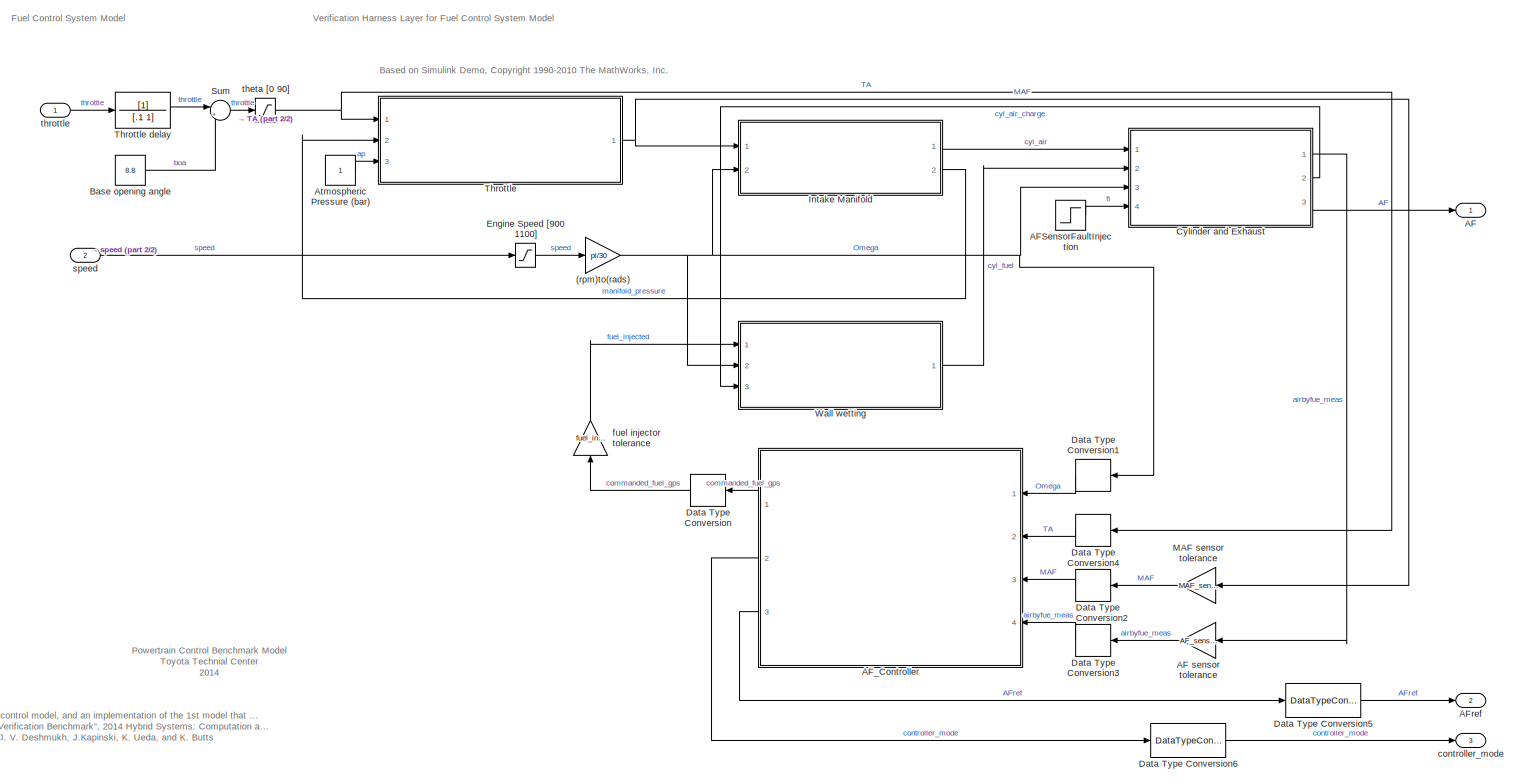
[diagram: root canvas - part 1/2, most of the canvas]
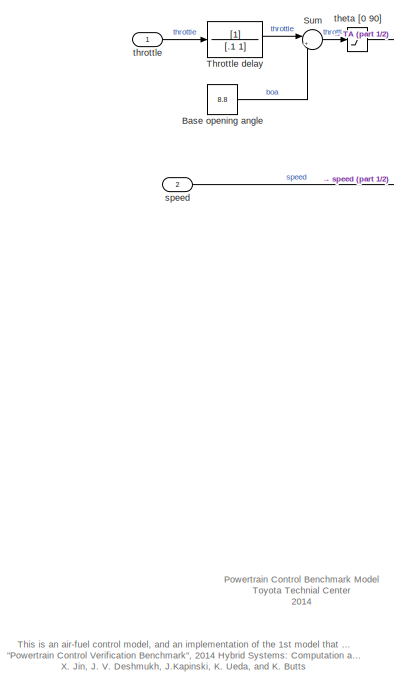
[diagram: root canvas - part 2/2, left side, full height]
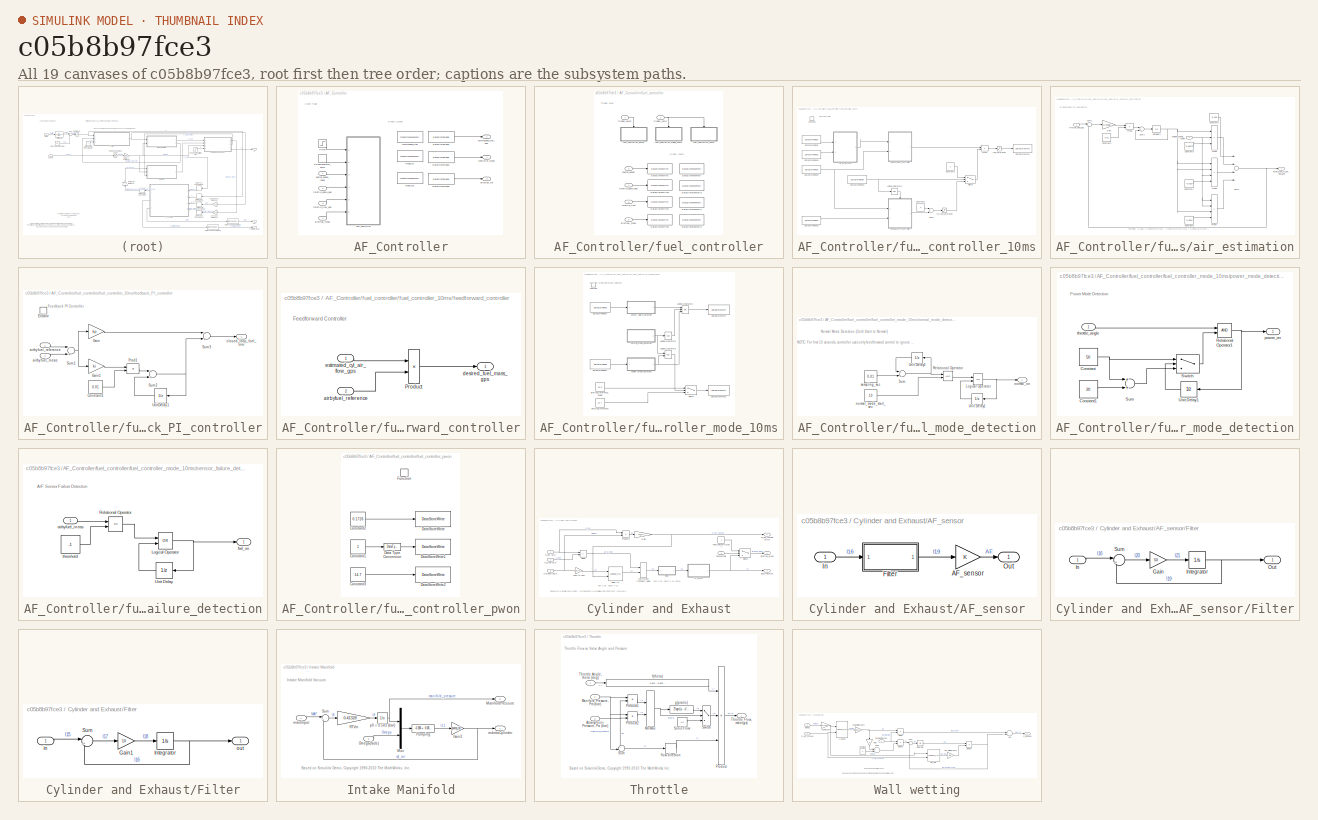
[diagram: thumbnail index - all 19 canvases of the model, root first then tree order]
MODEL slx_c05b8b97fce3
KIND model
CONFIG AbsTol = auto
CONFIG EnableMultiTasking = off
CONFIG FixedStep = auto
CONFIG MaxStep = .01
CONFIG MinStep = auto
CONFIG RelTol = 1e-3
CONFIG SampleTimeConstraint = Unconstrained
CONFIG Solver = ode15s
CONFIG SolverName = ode15s
CONFIG StartTime = 0.0
CONFIG StopTime = 40.0
BLOCK [Gain] (rpm)to(rads)
  Gain = pi/30
  OutDataTypeStr = Inherit: Inherit via internal rule
  ParamDataTypeStr = Inherit: Inherit via internal rule
  SaturateOnIntegerOverflow = off
BLOCK [Outport] AF
  IconDisplay = Port number
BLOCK [Gain] AF sensor tolerance
  Gain = AF_sensor_tol
  OutDataTypeStr = Inherit: Inherit via internal rule
  ParamDataTypeStr = Inherit: Inherit via internal rule
  SaturateOnIntegerOverflow = off
BLOCK [Step] AFSensorFaultInjection
  AttributesFormatString = 1: Failure\n0: Normal
  SampleTime = 0
  Time = fault_time
BLOCK [SubSystem] AF_Controller
  Ports = [4, 3]
  RequestExecContextInheritance = off
  TreatAsAtomicUnit = on
  Variant = off
BLOCK [DataStoreRead] AF_Controller/DataStoreRead
  AttributesFormatString = Priority = %<Priority>
  DataStoreName = commanded_fuel
  Ports = [0, 1]
  Priority = 2
  SampleTime = 0.01
BLOCK [DataStoreRead] AF_Controller/DataStoreRead1
  AttributesFormatString = Priority = %<Priority>
  DataStoreName = controller_mode
  Ports = [0, 1]
  Priority = 2
  SampleTime = 0.01
BLOCK [DataStoreRead] AF_Controller/DataStoreRead2
  AttributesFormatString = Priority = %<Priority>
  DataStoreName = airbyfuel_ref
  Ports = [0, 1]
  Priority = 2
  SampleTime = 0.01
BLOCK [DiscretePulseGenerator] AF_Controller/PulseGenerator_10ms
  Period = 0.01
  PhaseDelay = 0.01
  Ports = [0, 1]
  PulseType = Time based
  PulseWidth = 50
BLOCK [Step] AF_Controller/Pwon
  SampleTime = 0
  Time = 0.001
BLOCK [Inport] AF_Controller/airbyfuel_meas
  IconDisplay = Port number
  Port = 4
  SamplingMode = Sample based
  SignalType = real
BLOCK [Outport] AF_Controller/airbyfuel_ref
  IconDisplay = Port number
  Port = 3
  SamplingMode = Sample based
  SignalType = real
BLOCK [DataStoreMemory] AF_Controller/commanded_fuel
  AttributesFormatString = commanded_fuel
  DataStoreName = commanded_fuel
  InitialValue = 0.1726
  OutDataTypeStr = single
  ShowAdditionalParam = off
  SignalType = real
BLOCK [Outport] AF_Controller/commanded_fuel_gps
  IconDisplay = Port number
  SamplingMode = Sample based
  SignalType = real
BLOCK [Outport] AF_Controller/controller_mode
  IconDisplay = Port number
  Port = 2
  SamplingMode = Sample based
  SignalType = real
BLOCK [Inport] AF_Controller/engine_speed_radps
  IconDisplay = Port number
  SamplingMode = Sample based
  SignalType = real
BLOCK [SubSystem] AF_Controller/fuel_controller
  AttributesFormatString = Priority = %<Priority>
  Ports = [6]
  Priority = 1
  RequestExecContextInheritance = off
  TreatAsAtomicUnit = on
  Variant = off
BLOCK [DataStoreMemory] AF_Controller/fuel_controller/DataStoreMemory
  AttributesFormatString = engine speed
  DataStoreName = engine_speed
  OutDataTypeStr = single
  ShowAdditionalParam = off
  SignalType = real
BLOCK [DataStoreMemory] AF_Controller/fuel_controller/DataStoreMemory1
  AttributesFormatString = throttle flow
  DataStoreName = throttle_flow
  OutDataTypeStr = single
  ShowAdditionalParam = off
  SignalType = real
BLOCK [DataStoreMemory] AF_Controller/fuel_controller/DataStoreMemory2
  AttributesFormatString = lambda_meas
  DataStoreName = airbyfuel_meas
  OutDataTypeStr = single
  ShowAdditionalParam = off
  SignalType = real
BLOCK [DataStoreMemory] AF_Controller/fuel_controller/DataStoreMemory3
  AttributesFormatString = throttle flow
  DataStoreName = throttle_angle
  OutDataTypeStr = single
  ShowAdditionalParam = off
  SignalType = real
BLOCK [DataStoreWrite] AF_Controller/fuel_controller/DataStoreWrite
  AttributesFormatString = Priority = %<Priority>
  DataStoreName = engine_speed
  Ports = [1]
  Priority = 1
BLOCK [DataStoreWrite] AF_Controller/fuel_controller/DataStoreWrite1
  AttributesFormatString = Priority = %<Priority>
  DataStoreName = throttle_flow
  Ports = [1]
  Priority = 1
BLOCK [DataStoreWrite] AF_Controller/fuel_controller/DataStoreWrite2
  AttributesFormatString = Priority = %<Priority>
  DataStoreName = airbyfuel_meas
  Ports = [1]
  Priority = 1
BLOCK [DataStoreWrite] AF_Controller/fuel_controller/DataStoreWrite3
  AttributesFormatString = Priority = %<Priority>
  DataStoreName = throttle_angle
  Ports = [1]
  Priority = 1
BLOCK [Inport] AF_Controller/fuel_controller/airbyfuel_meas
  IconDisplay = Port number
  Port = 6
  SamplingMode = Sample based
  SignalType = real
BLOCK [Inport] AF_Controller/fuel_controller/engine_speed
  IconDisplay = Port number
  Port = 3
  SamplingMode = Sample based
  SignalType = real
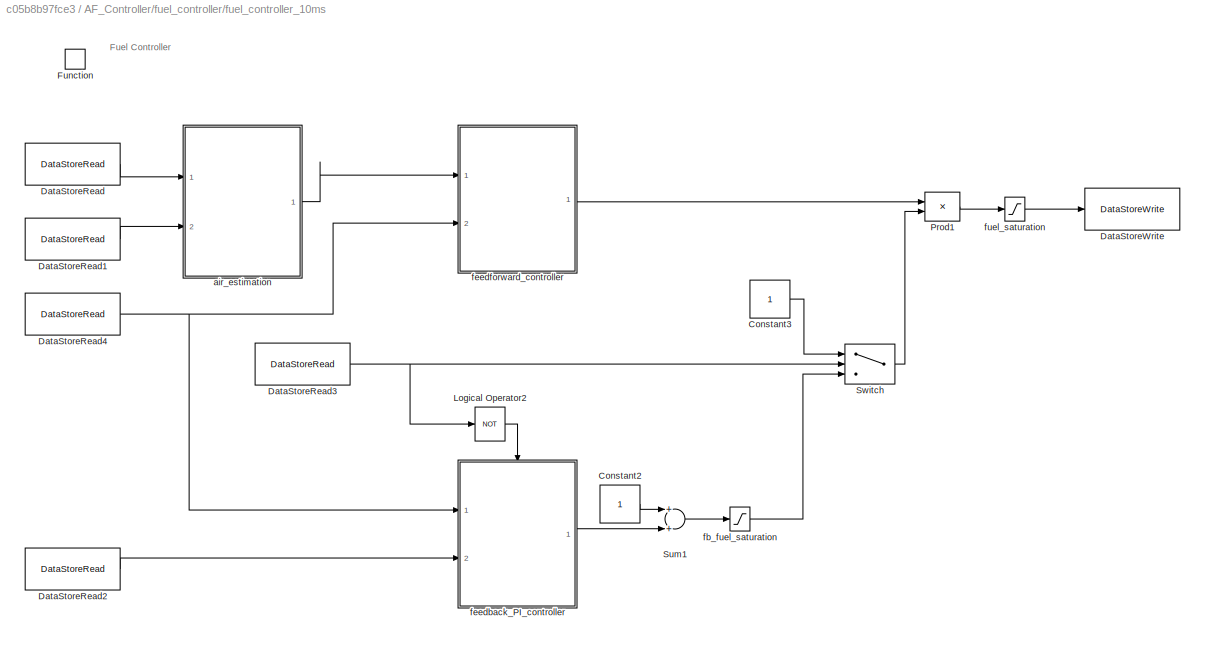
BLOCK [SubSystem] AF_Controller/fuel_controller/fuel_controller_10ms
  AttributesFormatString = Priority = %<Priority>
  Ports = [0, 0, 0, 1]
  Priority = 30
  RequestExecContextInheritance = off
  TreatAsAtomicUnit = on
  Variant = off
BLOCK [Constant] AF_Controller/fuel_controller/fuel_controller_10ms/Constant2
  OutDataTypeStr = single
BLOCK [Constant] AF_Controller/fuel_controller/fuel_controller_10ms/Constant3
  OutDataTypeStr = single
BLOCK [DataStoreRead] AF_Controller/fuel_controller/fuel_controller_10ms/DataStoreRead
  DataStoreName = throttle_flow
  Ports = [0, 1]
BLOCK [DataStoreRead] AF_Controller/fuel_controller/fuel_controller_10ms/DataStoreRead1
  DataStoreName = engine_speed
  Ports = [0, 1]
BLOCK [DataStoreRead] AF_Controller/fuel_controller/fuel_controller_10ms/DataStoreRead2
  DataStoreName = airbyfuel_meas
  Ports = [0, 1]
BLOCK [DataStoreRead] AF_Controller/fuel_controller/fuel_controller_10ms/DataStoreRead3
  AttributesFormatString = 1: Feedforward\n0: Feedforward + Feedback
  DataStoreName = controller_mode
  Ports = [0, 1]
BLOCK [DataStoreRead] AF_Controller/fuel_controller/fuel_controller_10ms/DataStoreRead4
  DataStoreName = airbyfuel_ref
  Ports = [0, 1]
BLOCK [DataStoreWrite] AF_Controller/fuel_controller/fuel_controller_10ms/DataStoreWrite
  DataStoreName = commanded_fuel
  Ports = [1]
BLOCK [TriggerPort] AF_Controller/fuel_controller/fuel_controller_10ms/Function
  Ports = []
  StatesWhenEnabling = held
  VariantControl = Variant
BLOCK [Logic] AF_Controller/fuel_controller/fuel_controller_10ms/Logical Operator2
  AllPortsSameDT = off
  Operator = NOT
  OutDataTypeStr = boolean
  Ports = [1, 1]
BLOCK [Product] AF_Controller/fuel_controller/fuel_controller_10ms/Prod1
  InputSameDT = off
  OutDataTypeStr = Inherit: Inherit via back propagation
  Ports = [2, 1]
  RndMeth = Simplest
  SaturateOnIntegerOverflow = off
BLOCK [Sum] AF_Controller/fuel_controller/fuel_controller_10ms/Sum1
  OutDataTypeStr = Inherit: Inherit via back propagation
  Ports = [2, 1]
  RndMeth = Simplest
  SaturateOnIntegerOverflow = off
BLOCK [Switch] AF_Controller/fuel_controller/fuel_controller_10ms/Switch
  Criteria = u2 ~= 0
  InputSameDT = off
  SaturateOnIntegerOverflow = off
  Threshold = 0.5
BLOCK [SubSystem] AF_Controller/fuel_controller/fuel_controller_10ms/air_estimation
  Ports = [2, 1]
  RequestExecContextInheritance = off
  TreatAsAtomicUnit = on
  Variant = off
BLOCK [Constant] AF_Controller/fuel_controller/fuel_controller_10ms/air_estimation/Constant1
  AttributesFormatString = Sample Time (s)
  OutDataTypeStr = single
  SampleTime = -1
  UserDataPersistent = on
  Value = 0.01
BLOCK [Constant] AF_Controller/fuel_controller/fuel_controller_10ms/air_estimation/Constant2
  OutDataTypeStr = single
  SampleTime = -1
  UserDataPersistent = on
  Value = -0.366
BLOCK [Constant] AF_Controller/fuel_controller/fuel_controller_10ms/air_estimation/Constant3
  OutDataTypeStr = single
  SampleTime = -1
  UserDataPersistent = on
  Value = 0.08979
BLOCK [Constant] AF_Controller/fuel_controller/fuel_controller_10ms/air_estimation/Constant4
  OutDataTypeStr = single
  SampleTime = -1
  UserDataPersistent = on
  Value = -0.0337
BLOCK [Constant] AF_Controller/fuel_controller/fuel_controller_10ms/air_estimation/Constant5
  OutDataTypeStr = single
  SampleTime = -1
  UserDataPersistent = on
  Value = 0.0001
BLOCK [Gain] AF_Controller/fuel_controller/fuel_controller_10ms/air_estimation/Gain
  AttributesFormatString = RT/Vm
  Gain = 0.41328
  OutDataTypeStr = Inherit: Inherit via back propagation
  ParamDataTypeStr = single
  RndMeth = Simplest
  UserDataPersistent = on
BLOCK [Product] AF_Controller/fuel_controller/fuel_controller_10ms/air_estimation/Prod1
  InputSameDT = off
  OutDataTypeStr = Inherit: Inherit via back propagation
  Ports = [2, 1]
  RndMeth = Simplest
  SaturateOnIntegerOverflow = off
BLOCK [Product] AF_Controller/fuel_controller/fuel_controller_10ms/air_estimation/Prod2
  InputSameDT = off
  Inputs = 3
  OutDataTypeStr = Inherit: Inherit via back propagation
  Ports = [3, 1]
  RndMeth = Simplest
  SaturateOnIntegerOverflow = off
BLOCK [Product] AF_Controller/fuel_controller/fuel_controller_10ms/air_estimation/Prod3
  InputSameDT = off
  Inputs = 4
  OutDataTypeStr = Inherit: Inherit via back propagation
  Ports = [4, 1]
  RndMeth = Simplest
  SaturateOnIntegerOverflow = off
BLOCK [Product] AF_Controller/fuel_controller/fuel_controller_10ms/air_estimation/Prod4
  InputSameDT = off
  Inputs = 4
  OutDataTypeStr = Inherit: Inherit via back propagation
  Ports = [4, 1]
  RndMeth = Simplest
  SaturateOnIntegerOverflow = off
BLOCK [Sum] AF_Controller/fuel_controller/fuel_controller_10ms/air_estimation/Sum1
  IconShape = round
  Inputs = |+-
  OutDataTypeStr = Inherit: Inherit via back propagation
  Ports = [2, 1]
  RndMeth = Simplest
  SaturateOnIntegerOverflow = off
BLOCK [Sum] AF_Controller/fuel_controller/fuel_controller_10ms/air_estimation/Sum2
  OutDataTypeStr = Inherit: Inherit via back propagation
  Ports = [2, 1]
  RndMeth = Simplest
  SaturateOnIntegerOverflow = off
BLOCK [Sum] AF_Controller/fuel_controller/fuel_controller_10ms/air_estimation/Sum3
  Inputs = ++++
  OutDataTypeStr = Inherit: Inherit via back propagation
  Ports = [4, 1]
  RndMeth = Simplest
  SaturateOnIntegerOverflow = off
BLOCK [UnitDelay] AF_Controller/fuel_controller/fuel_controller_10ms/air_estimation/UnitDelay1
  AttributesFormatString = p0 = %<InitialCondition> (bar)
  InitialCondition = 0.982
  SampleTime = -1
  UserDataPersistent = on
BLOCK [Inport] AF_Controller/fuel_controller/fuel_controller_10ms/air_estimation/engine_speed_radps
  IconDisplay = Port number
  Port = 2
  SamplingMode = Sample based
  SignalType = real
BLOCK [Outport] AF_Controller/fuel_controller/fuel_controller_10ms/air_estimation/estimated_cyl_air_flow_gps
  IconDisplay = Port number
  SamplingMode = Sample based
  SignalType = real
BLOCK [Inport] AF_Controller/fuel_controller/fuel_controller_10ms/air_estimation/throttle_flow_gps
  IconDisplay = Port number
  SamplingMode = Sample based
  SignalType = real
BLOCK [Saturate] AF_Controller/fuel_controller/fuel_controller_10ms/fb_fuel_saturation
  AttributesFormatString = y >= 0
  InputPortMap = u0
  LowerLimit = 0
  Ports = [1, 1]
  RndMeth = Round
  UpperLimit = inf
BLOCK [SubSystem] AF_Controller/fuel_controller/fuel_controller_10ms/feedback_PI_controller
  Ports = [2, 1, 1]
  RequestExecContextInheritance = off
  TreatAsAtomicUnit = on
  Variant = off
BLOCK [Constant] AF_Controller/fuel_controller/fuel_controller_10ms/feedback_PI_controller/Constant1
  AttributesFormatString = Sample Time [s]
  OutDataTypeStr = single
  SampleTime = -1
  UserDataPersistent = on
  Value = 0.01
BLOCK [EnablePort] AF_Controller/fuel_controller/fuel_controller_10ms/feedback_PI_controller/Enable
  Ports = []
BLOCK [Gain] AF_Controller/fuel_controller/fuel_controller_10ms/feedback_PI_controller/Gain
  AttributesFormatString = Proportional Gain
  Gain = kp
  OutDataTypeStr = Inherit: Inherit via back propagation
  ParamDataTypeStr = single
  RndMeth = Simplest
  UserDataPersistent = on
BLOCK [Gain] AF_Controller/fuel_controller/fuel_controller_10ms/feedback_PI_controller/Gain1
  AttributesFormatString = Integral Gain
  Gain = ki
  OutDataTypeStr = Inherit: Inherit via back propagation
  ParamDataTypeStr = single
  RndMeth = Simplest
  UserDataPersistent = on
BLOCK [Product] AF_Controller/fuel_controller/fuel_controller_10ms/feedback_PI_controller/Prod1
  InputSameDT = off
  OutDataTypeStr = Inherit: Inherit via back propagation
  Ports = [2, 1]
  RndMeth = Simplest
  SaturateOnIntegerOverflow = off
BLOCK [Sum] AF_Controller/fuel_controller/fuel_controller_10ms/feedback_PI_controller/Sum1
  Inputs = -+
  OutDataTypeStr = Inherit: Inherit via back propagation
  Ports = [2, 1]
  RndMeth = Simplest
  SaturateOnIntegerOverflow = off
BLOCK [Sum] AF_Controller/fuel_controller/fuel_controller_10ms/feedback_PI_controller/Sum2
  OutDataTypeStr = Inherit: Inherit via back propagation
  Ports = [2, 1]
  RndMeth = Simplest
  SaturateOnIntegerOverflow = off
BLOCK [Sum] AF_Controller/fuel_controller/fuel_controller_10ms/feedback_PI_controller/Sum3
  OutDataTypeStr = Inherit: Inherit via back propagation
  Ports = [2, 1]
  RndMeth = Simplest
  SaturateOnIntegerOverflow = off
BLOCK [UnitDelay] AF_Controller/fuel_controller/fuel_controller_10ms/feedback_PI_controller/UnitDelay1
  AttributesFormatString = Initial Value = 0
  SampleTime = -1
  UserDataPersistent = on
BLOCK [Inport] AF_Controller/fuel_controller/fuel_controller_10ms/feedback_PI_controller/airbyfuel_meas
  IconDisplay = Port number
  Port = 2
  SamplingMode = Sample based
  SignalType = real
BLOCK [Inport] AF_Controller/fuel_controller/fuel_controller_10ms/feedback_PI_controller/airbyfuel_reference
  IconDisplay = Port number
  SamplingMode = Sample based
  SignalType = real
BLOCK [Outport] AF_Controller/fuel_controller/fuel_controller_10ms/feedback_PI_controller/closed_loop_fuel_trim
  IconDisplay = Port number
  SamplingMode = Sample based
  SignalType = real
BLOCK [SubSystem] AF_Controller/fuel_controller/fuel_controller_10ms/feedforward_controller
  Ports = [2, 1]
  RequestExecContextInheritance = off
  TreatAsAtomicUnit = on
  Variant = off
BLOCK [Product] AF_Controller/fuel_controller/fuel_controller_10ms/feedforward_controller/Product
  InputSameDT = off
  Inputs = */
  Ports = [2, 1]
  RndMeth = Simplest
BLOCK [Inport] AF_Controller/fuel_controller/fuel_controller_10ms/feedforward_controller/airbyfuel_reference
  IconDisplay = Port number
  Port = 2
  SamplingMode = Sample based
  SignalType = real
BLOCK [Outport] AF_Controller/fuel_controller/fuel_controller_10ms/feedforward_controller/desired_fuel_mass_gps
  IconDisplay = Port number
  SamplingMode = Sample based
  SignalType = real
BLOCK [Inport] AF_Controller/fuel_controller/fuel_controller_10ms/feedforward_controller/estimated_cyl_air_flow_gps
  IconDisplay = Port number
  SamplingMode = Sample based
  SignalType = real
BLOCK [Saturate] AF_Controller/fuel_controller/fuel_controller_10ms/fuel_saturation
  AttributesFormatString = 0.13 <=\ncommanded_fuel\n<= 1.66
  InputPortMap = u0
  LowerLimit = 0.13
  Ports = [1, 1]
  RndMeth = Round
  UpperLimit = 1.66
BLOCK [SubSystem] AF_Controller/fuel_controller/fuel_controller_mode_10ms
  AttributesFormatString = Priority = %<Priority>
  Ports = [0, 0, 0, 1]
  Priority = 20
  RequestExecContextInheritance = off
  TreatAsAtomicUnit = on
  Variant = off
BLOCK [DataStoreRead] AF_Controller/fuel_controller/fuel_controller_mode_10ms/DataStoreRead2
  DataStoreName = airbyfuel_meas
  Ports = [0, 1]
BLOCK [DataStoreRead] AF_Controller/fuel_controller/fuel_controller_mode_10ms/DataStoreRead4
  DataStoreName = throttle_angle
  Ports = [0, 1]
BLOCK [DataStoreWrite] AF_Controller/fuel_controller/fuel_controller_mode_10ms/DataStoreWrite
  AttributesFormatString = 1: Feedforward\n0: Feedforward + Feedback
  DataStoreName = controller_mode
  Ports = [1]
BLOCK [DataStoreWrite] AF_Controller/fuel_controller/fuel_controller_mode_10ms/DataStoreWrite1
  DataStoreName = airbyfuel_ref
  Ports = [1]
BLOCK [TriggerPort] AF_Controller/fuel_controller/fuel_controller_mode_10ms/Function
  Ports = []
  StatesWhenEnabling = held
  VariantControl = Variant
BLOCK [Logic] AF_Controller/fuel_controller/fuel_controller_mode_10ms/Logical Operator1
  AllPortsSameDT = off
  Inputs = 3
  Operator = OR
  OutDataTypeStr = boolean
  Ports = [3, 1]
BLOCK [Logic] AF_Controller/fuel_controller/fuel_controller_mode_10ms/Logical Operator2
  AllPortsSameDT = off
  Operator = NOT
  OutDataTypeStr = boolean
  Ports = [1, 1]
BLOCK [Logic] AF_Controller/fuel_controller/fuel_controller_mode_10ms/Logical Operator3
  AllPortsSameDT = off
  OutDataTypeStr = boolean
  Ports = [2, 1]
BLOCK [Switch] AF_Controller/fuel_controller/fuel_controller_mode_10ms/Switch
  Criteria = u2 ~= 0
  InputSameDT = off
  SaturateOnIntegerOverflow = off
BLOCK [Constant] AF_Controller/fuel_controller/fuel_controller_mode_10ms/airbyfuel_reference
  OutDataTypeStr = single
  SampleTime = -1
  UserDataPersistent = on
  Value = 14.7
BLOCK [Constant] AF_Controller/fuel_controller/fuel_controller_mode_10ms/airbyfuel_reference_power
  OutDataTypeStr = single
  SampleTime = -1
  UserDataPersistent = on
  Value = 12.5
BLOCK [SubSystem] AF_Controller/fuel_controller/fuel_controller_mode_10ms/normal_mode_detection
  AttributesFormatString = 0: Feedforward\n1: Feedforward + Feedback
  Ports = [0, 1]
  RequestExecContextInheritance = off
  TreatAsAtomicUnit = on
  Variant = off
BLOCK [Logic] AF_Controller/fuel_controller/fuel_controller_mode_10ms/normal_mode_detection/Logical Operator
  Operator = OR
  OutDataTypeStr = boolean
  Ports = [2, 1]
BLOCK [RelationalOperator] AF_Controller/fuel_controller/fuel_controller_mode_10ms/normal_mode_detection/Relational Operator
  InputSameDT = off
  OutDataTypeStr = boolean
  Ports = [2, 1]
BLOCK [Sum] AF_Controller/fuel_controller/fuel_controller_mode_10ms/normal_mode_detection/Sum
  InputSameDT = off
  OutDataTypeStr = Inherit: Inherit via internal rule
  Ports = [2, 1]
  SaturateOnIntegerOverflow = off
BLOCK [UnitDelay] AF_Controller/fuel_controller/fuel_controller_mode_10ms/normal_mode_detection/Unit Delay1
  AttributesFormatString = Initial Value = 0
  InputProcessing = Elements as channels (sample based)
  SampleTime = -1
BLOCK [UnitDelay] AF_Controller/fuel_controller/fuel_controller_mode_10ms/normal_mode_detection/Unit Delay2
  AttributesFormatString = Initial Value = 0
  InputProcessing = Elements as channels (sample based)
  SampleTime = -1
BLOCK [Constant] AF_Controller/fuel_controller/fuel_controller_mode_10ms/normal_mode_detection/normal_mode_start_sec
  AttributesFormatString = Normal Mode Start Time (s)
  OutDataTypeStr = single
  SampleTime = -1
  UserDataPersistent = on
  Value = 10
BLOCK [Outport] AF_Controller/fuel_controller/fuel_controller_mode_10ms/normal_mode_detection/normal_on
  IconDisplay = Port number
BLOCK [Constant] AF_Controller/fuel_controller/fuel_controller_mode_10ms/normal_mode_detection/sampling_sec
  AttributesFormatString = Sample Time (s)
  OutDataTypeStr = single
  SampleTime = -1
  UserDataPersistent = on
  Value = 0.01
BLOCK [SubSystem] AF_Controller/fuel_controller/fuel_controller_mode_10ms/power_mode_detection
  AttributesFormatString = 1: Feedforward\n0: Feedforward + Feedback
  Ports = [1, 1]
  RequestExecContextInheritance = off
  TreatAsAtomicUnit = on
  Variant = off
BLOCK [Constant] AF_Controller/fuel_controller/fuel_controller_mode_10ms/power_mode_detection/Constant
  AttributesFormatString = Base
  OutDataTypeStr = single
  Value = 50
BLOCK [Constant] AF_Controller/fuel_controller/fuel_controller_mode_10ms/power_mode_detection/Constant1
  AttributesFormatString = Hysteresis
  OutDataTypeStr = single
  Value = 20
BLOCK [RelationalOperator] AF_Controller/fuel_controller/fuel_controller_mode_10ms/power_mode_detection/Relational Operator1
  InputSameDT = off
  OutDataTypeStr = boolean
  Ports = [2, 1]
BLOCK [Sum] AF_Controller/fuel_controller/fuel_controller_mode_10ms/power_mode_detection/Sum
  InputSameDT = off
  OutDataTypeStr = Inherit: Inherit via internal rule
  Ports = [2, 1]
  SaturateOnIntegerOverflow = off
BLOCK [Switch] AF_Controller/fuel_controller/fuel_controller_mode_10ms/power_mode_detection/Switch
  Criteria = u2 ~= 0
  InputSameDT = off
  SaturateOnIntegerOverflow = off
BLOCK [UnitDelay] AF_Controller/fuel_controller/fuel_controller_mode_10ms/power_mode_detection/Unit Delay1
  AttributesFormatString = Initial Value = 0
  InputProcessing = Elements as channels (sample based)
  SampleTime = -1
BLOCK [Outport] AF_Controller/fuel_controller/fuel_controller_mode_10ms/power_mode_detection/power_on
  IconDisplay = Port number
BLOCK [Inport] AF_Controller/fuel_controller/fuel_controller_mode_10ms/power_mode_detection/throttle_angle
  IconDisplay = Port number
BLOCK [SubSystem] AF_Controller/fuel_controller/fuel_controller_mode_10ms/sensor_failure_detection
  AttributesFormatString = 1: Feedforward\n0: Feedforward + Feedback
  Ports = [1, 1]
  RequestExecContextInheritance = off
  TreatAsAtomicUnit = on
  Variant = off
BLOCK [Logic] AF_Controller/fuel_controller/fuel_controller_mode_10ms/sensor_failure_detection/Logical Operator
  Operator = OR
  OutDataTypeStr = boolean
  Ports = [2, 1]
BLOCK [RelationalOperator] AF_Controller/fuel_controller/fuel_controller_mode_10ms/sensor_failure_detection/Relational Operator
  InputSameDT = off
  Operator = <=
  OutDataTypeStr = boolean
  Ports = [2, 1]
BLOCK [UnitDelay] AF_Controller/fuel_controller/fuel_controller_mode_10ms/sensor_failure_detection/Unit Delay
  AttributesFormatString = Initial Value = 0
  InputProcessing = Elements as channels (sample based)
  SampleTime = -1
BLOCK [Inport] AF_Controller/fuel_controller/fuel_controller_mode_10ms/sensor_failure_detection/airbyfuel_meas
  IconDisplay = Port number
BLOCK [Outport] AF_Controller/fuel_controller/fuel_controller_mode_10ms/sensor_failure_detection/fail_on
  IconDisplay = Port number
BLOCK [Constant] AF_Controller/fuel_controller/fuel_controller_mode_10ms/sensor_failure_detection/threshold
  OutDataTypeStr = single
  Value = -1
BLOCK [SubSystem] AF_Controller/fuel_controller/fuel_controller_pwon
  AttributesFormatString = Priority = %<Priority>
  Ports = [0, 0, 0, 1]
  Priority = 10
  RequestExecContextInheritance = off
  TreatAsAtomicUnit = on
  Variant = off
BLOCK [Constant] AF_Controller/fuel_controller/fuel_controller_pwon/Constant1
  OutDataTypeStr = single
  SampleTime = -1
  UserDataPersistent = on
BLOCK [Constant] AF_Controller/fuel_controller/fuel_controller_pwon/Constant2
  OutDataTypeStr = single
  SampleTime = -1
  UserDataPersistent = on
  Value = 0.1726
BLOCK [Constant] AF_Controller/fuel_controller/fuel_controller_pwon/Constant3
  OutDataTypeStr = single
  SampleTime = -1
  UserDataPersistent = on
  Value = 14.7
BLOCK [DataTypeConversion] AF_Controller/fuel_controller/fuel_controller_pwon/Data Type Conversion
  OutDataTypeStr = boolean
  RndMeth = Floor
  SaturateOnIntegerOverflow = off
BLOCK [DataStoreWrite] AF_Controller/fuel_controller/fuel_controller_pwon/DataStoreWrite
  DataStoreName = commanded_fuel
  Ports = [1]
BLOCK [DataStoreWrite] AF_Controller/fuel_controller/fuel_controller_pwon/DataStoreWrite1
  DataStoreName = controller_mode
  Ports = [1]
BLOCK [DataStoreWrite] AF_Controller/fuel_controller/fuel_controller_pwon/DataStoreWrite2
  DataStoreName = airbyfuel_ref
  Ports = [1]
BLOCK [TriggerPort] AF_Controller/fuel_controller/fuel_controller_pwon/Function
  Ports = []
  StatesWhenEnabling = held
  VariantControl = Variant
BLOCK [Inport] AF_Controller/fuel_controller/throttle_angle_deg
  IconDisplay = Port number
  Port = 4
  SamplingMode = Sample based
  SignalType = real
BLOCK [Inport] AF_Controller/fuel_controller/throttle_flow
  IconDisplay = Port number
  Port = 5
  SamplingMode = Sample based
  SignalType = real
BLOCK [Inport] AF_Controller/fuel_controller/trigger_10ms
  IconDisplay = Port number
  Port = 2
  SamplingMode = Sample based
  SignalType = real
BLOCK [Inport] AF_Controller/fuel_controller/trigger_pwon
  IconDisplay = Port number
  SamplingMode = Sample based
  SignalType = real
BLOCK [DataStoreMemory] AF_Controller/mode_fb
  AttributesFormatString = controller_mode
  DataStoreName = controller_mode
  OutDataTypeStr = boolean
  ShowAdditionalParam = off
  SignalType = real
BLOCK [DataStoreMemory] AF_Controller/mode_fb1
  AttributesFormatString = airbyfuel_reference
  DataStoreName = airbyfuel_ref
  OutDataTypeStr = single
  ShowAdditionalParam = off
  SignalType = real
BLOCK [Inport] AF_Controller/throttle_angle_deg
  IconDisplay = Port number
  Port = 2
  SamplingMode = Sample based
  SignalType = real
BLOCK [Inport] AF_Controller/throttle_flow_gps
  IconDisplay = Port number
  Port = 3
  SamplingMode = Sample based
  SignalType = real
BLOCK [Outport] AFref
  IconDisplay = Port number
  Port = 2
BLOCK [Constant] Atmospheric Pressure (bar)
BLOCK [Constant] Base opening angle
  Value = 8.8
BLOCK [SubSystem] Cylinder and Exhaust
  Ports = [4, 3]
  RequestExecContextInheritance = off
  Variant = off
BLOCK [SubSystem] Cylinder and Exhaust/AF_sensor
  Ports = [1, 1]
  RequestExecContextInheritance = off
  Variant = off
BLOCK [Gain] Cylinder and Exhaust/AF_sensor/AF_sensor
  OutDataTypeStr = double
  ParamDataTypeStr = Inherit: Inherit via internal rule
  SaturateOnIntegerOverflow = off
BLOCK [SubSystem] Cylinder and Exhaust/AF_sensor/Filter
  Ports = [1, 1]
  RequestExecContextInheritance = off
  Variant = off
BLOCK [Gain] Cylinder and Exhaust/AF_sensor/Filter/Gain
  Gain = 50
  OutDataTypeStr = Inherit: Inherit via internal rule
  ParamDataTypeStr = Inherit: Inherit via internal rule
  SaturateOnIntegerOverflow = off
BLOCK [Inport] Cylinder and Exhaust/AF_sensor/Filter/In
  IconDisplay = Port number
BLOCK [Integrator] Cylinder and Exhaust/AF_sensor/Filter/Integrator
  InitialCondition = 14.7
  Ports = [1, 1]
BLOCK [Outport] Cylinder and Exhaust/AF_sensor/Filter/Out
  IconDisplay = Port number
BLOCK [Sum] Cylinder and Exhaust/AF_sensor/Filter/Sum
  IconShape = round
  InputSameDT = off
  Inputs = |+-
  OutDataTypeStr = Inherit: Inherit via internal rule
  Ports = [2, 1]
  SaturateOnIntegerOverflow = off
BLOCK [Inport] Cylinder and Exhaust/AF_sensor/In
  IconDisplay = Port number
BLOCK [Outport] Cylinder and Exhaust/AF_sensor/Out
  IconDisplay = Port number
BLOCK [Product] Cylinder and Exhaust/Divide
  InputSameDT = off
  Inputs = */
  OutDataTypeStr = Inherit: Inherit via internal rule
  Ports = [2, 1]
  RndMeth = Floor
  SaturateOnIntegerOverflow = off
BLOCK [Constant] Cylinder and Exhaust/FaultySensorOutput
  Value = -1
BLOCK [SubSystem] Cylinder and Exhaust/Filter
  Ports = [1, 1]
  RequestExecContextInheritance = off
  Variant = off
BLOCK [Gain] Cylinder and Exhaust/Filter/Gain1
  Gain = 10
  OutDataTypeStr = Inherit: Inherit via internal rule
  ParamDataTypeStr = Inherit: Inherit via internal rule
  SaturateOnIntegerOverflow = off
BLOCK [Integrator] Cylinder and Exhaust/Filter/Integrator
  InitialCondition = 14.7
  Ports = [1, 1]
BLOCK [Sum] Cylinder and Exhaust/Filter/Sum
  IconShape = round
  InputSameDT = off
  Inputs = |+-
  OutDataTypeStr = Inherit: Inherit via internal rule
  Ports = [2, 1]
  SaturateOnIntegerOverflow = off
BLOCK [Inport] Cylinder and Exhaust/Filter/in
  IconDisplay = Port number
BLOCK [Outport] Cylinder and Exhaust/Filter/out
  IconDisplay = Port number
BLOCK [Gain] Cylinder and Exhaust/Gain
  Gain = 4*pi/4
  OutDataTypeStr = Inherit: Inherit via internal rule
  ParamDataTypeStr = Inherit: Inherit via internal rule
  SaturateOnIntegerOverflow = off
BLOCK [Inport] Cylinder and Exhaust/Omega(rad//s)
  IconDisplay = Port number
  Port = 3
BLOCK [Product] Cylinder and Exhaust/Product1
  InputSameDT = off
  Inputs = */
  OutDataTypeStr = Inherit: Inherit via internal rule
  Ports = [2, 1]
  SaturateOnIntegerOverflow = off
BLOCK [Inport] Cylinder and Exhaust/SensorFault
  IconDisplay = Port number
  Port = 4
BLOCK [Switch] Cylinder and Exhaust/Switch
  InputSameDT = off
  SaturateOnIntegerOverflow = off
  Threshold = 0.5
BLOCK [Outport] Cylinder and Exhaust/airbyfue_meas
  IconDisplay = Port number
BLOCK [Outport] Cylinder and Exhaust/airbyfuel_mon 
  IconDisplay = Port number
  Port = 3
BLOCK [Inport] Cylinder and Exhaust/cyl_air (g//s)
  IconDisplay = Port number
BLOCK [Outport] Cylinder and Exhaust/cyl_air_charge (g//cyl)
  IconDisplay = Port number
  Port = 2
BLOCK [Inport] Cylinder and Exhaust/cyl_fuel (g//s)
  IconDisplay = Port number
  Port = 2
BLOCK [Lookup_n-D] Cylinder and Exhaust/delay (s)
  BreakpointsForDimension1 = [800,1000,1500,2000,3000]
  BreakpointsForDimension2 = [0.05,0.15,0.2,0.25]
  Ports = [2, 1]
  RndMeth = Simplest
  Table = reshape([0.8,0.6,0.4,0.3,0.2,0.4,0.3,0.2,0.2,0.2,0.3,0.25,0.2,0.2,0.2,0.25,0.2,0.2,0.2,0.2],5,4)
  UseLastTableValue = on
BLOCK [VariableTransportDelay] Cylinder and Exhaust/fuel system transport delay
  InitialOutput = 14.7
  MaximumDelay = 10
  MaximumPoints = 20480
  Ports = [2, 1]
  VariableDelayType = Variable transport delay
BLOCK [Gain] Cylinder and Exhaust/rads to rpm
  Gain = 60/(2*pi)
  OutDataTypeStr = Inherit: Inherit via internal rule
  ParamDataTypeStr = Inherit: Inherit via internal rule
  SaturateOnIntegerOverflow = off
BLOCK [DataTypeConversion] Data Type Conversion
  OutDataTypeStr = double
  RndMeth = Floor
  SaturateOnIntegerOverflow = off
BLOCK [DataTypeConversion] Data Type Conversion1
  OutDataTypeStr = single
  RndMeth = Floor
  SaturateOnIntegerOverflow = off
BLOCK [DataTypeConversion] Data Type Conversion2
  OutDataTypeStr = single
  RndMeth = Floor
  SaturateOnIntegerOverflow = off
BLOCK [DataTypeConversion] Data Type Conversion3
  OutDataTypeStr = single
  RndMeth = Floor
  SaturateOnIntegerOverflow = off
BLOCK [DataTypeConversion] Data Type Conversion4
  OutDataTypeStr = single
  RndMeth = Floor
  SaturateOnIntegerOverflow = off
BLOCK [DataTypeConversion] Data Type Conversion5
  OutDataTypeStr = double
  RndMeth = Floor
  SaturateOnIntegerOverflow = off
BLOCK [DataTypeConversion] Data Type Conversion6
  OutDataTypeStr = double
  RndMeth = Floor
  SaturateOnIntegerOverflow = off
BLOCK [Saturate] Engine Speed [900 1100]
  InputPortMap = u0
  LowerLimit = 900
  Ports = [1, 1]
  UpperLimit = 3100
BLOCK [SubSystem] Intake Manifold
  Ports = [2, 2]
  RequestExecContextInheritance = off
  Variant = off
BLOCK [Gain] Intake Manifold/Gain2
  AttributesFormatString = pumping tolerance [0.9 1.1]
  Gain = pump_tol
  OutDataTypeStr = Inherit: Inherit via back propagation
  ParamDataTypeStr = single
  RndMeth = Simplest
  UserDataPersistent = on
BLOCK [Outport] Intake Manifold/ManifoldPressure
  IconDisplay = Port number
  InitialOutput = 0
  Port = 2
BLOCK [Mux] Intake Manifold/Mux
  DisplayOption = bar
  Inputs = 2
  Ports = [2, 1]
BLOCK [Inport] Intake Manifold/Omega(rads)
  IconDisplay = Port number
  Port = 2
BLOCK [Fcn] Intake Manifold/Pumping
  Expr = -0.366 + 0.08979*u[1]*u[2] - 0.0337*u[2]*u[1]*u[1] + 0.0001*u[1]*u[2]*u[2]
BLOCK [Gain] Intake Manifold/RTVm
  Gain = 0.41328
BLOCK [Sum] Intake Manifold/Sum
  IconShape = round
  Inputs = |+-
  Ports = [2, 1]
BLOCK [Inport] Intake Manifold/mdotInput
  IconDisplay = Port number
BLOCK [Outport] Intake Manifold/mdottoCylinder
  IconDisplay = Port number
  InitialOutput = 0
BLOCK [Integrator] Intake Manifold/p0 = 0.543 (bar)
  InitialCondition = 0.982
  Ports = [1, 1]
BLOCK [Gain] MAF sensor tolerance
  Gain = MAF_sensor_tol
  OutDataTypeStr = Inherit: Inherit via internal rule
  ParamDataTypeStr = Inherit: Inherit via internal rule
  SaturateOnIntegerOverflow = off
BLOCK [Sum] Sum
  IconShape = round
  InputSameDT = off
  Inputs = |++
  OutDataTypeStr = Inherit: Inherit via internal rule
  Ports = [2, 1]
  SaturateOnIntegerOverflow = off
BLOCK [SubSystem] Throttle
  Ports = [3, 1]
  RequestExecContextInheritance = off
  Variant = off
BLOCK [TransferFcn] Throttle delay
  Denominator = [.1 1]
BLOCK [Inport] Throttle/Atmospheric Pressure, Pa (bar) 
  IconDisplay = Port number
  Port = 3
BLOCK [Inport] Throttle/Manifold Pressure, Pm (bar)
  IconDisplay = Port number
  Port = 2
BLOCK [MinMax] Throttle/MinMax
  Inputs = 2
  Ports = [2, 1]
BLOCK [Product] Throttle/Product
  Inputs = 3
  Ports = [3, 1]
BLOCK [Product] Throttle/Product1
  Inputs = */
  Ports = [2, 1]
BLOCK [Product] Throttle/Product2
  Inputs = /*
  Ports = [2, 1]
BLOCK [Constant] Throttle/Sonic Flow 
  Value = 1.0
BLOCK [Sum] Throttle/Sum
  IconShape = round
  Inputs = +-|
  Ports = [2, 1]
BLOCK [Switch] Throttle/Switch
  Threshold = 0.5
BLOCK [Inport] Throttle/Throttle Angle, theta (deg)
  IconDisplay = Port number
BLOCK [Outport] Throttle/Throttle Flow, mdot(gs)
  IconDisplay = Port number
  InitialOutput = 0
BLOCK [Fcn] Throttle/f(theta)
  Expr = 2.821 - 0.05231*u + 0.10299*u*u - 0.00063*u*u*u
BLOCK [Signum] Throttle/flow direction
BLOCK [Fcn] Throttle/g(pratio)
  Expr = 2*sqrt(u - u*u)
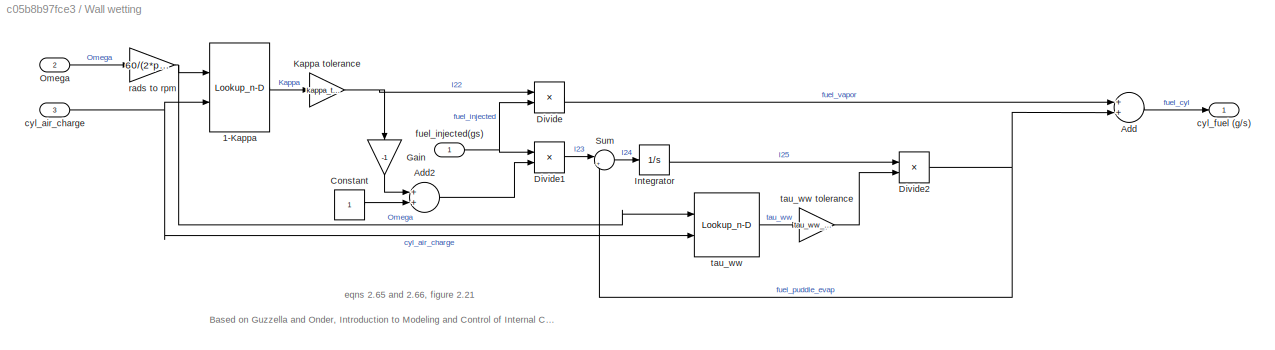
BLOCK [SubSystem] Wall wetting
  Ports = [3, 1]
  RequestExecContextInheritance = off
  Variant = off
BLOCK [Lookup_n-D] Wall wetting/1-Kappa
  BreakpointsForDimension1 = [1000,1500,2000,2500,3000]
  BreakpointsForDimension2 = [.1,.2,.3,.4]
  DiagnosticForOutOfRangeInput = Warning
  Ports = [2, 1]
  RndMeth = Simplest
  Table = reshape([0.8,.7,.7,.8,.9,.7,.66,.65,.73,.85,.66,.66,.63,.66,.8,.6,.6,.6,.6,.7],5,4)
  UseLastTableValue = on
BLOCK [Sum] Wall wetting/Add
  InputSameDT = off
  OutDataTypeStr = Inherit: Inherit via internal rule
  Ports = [2, 1]
  SaturateOnIntegerOverflow = off
BLOCK [Sum] Wall wetting/Add2
  InputSameDT = off
  OutDataTypeStr = Inherit: Inherit via internal rule
  Ports = [2, 1]
  SaturateOnIntegerOverflow = off
BLOCK [Constant] Wall wetting/Constant
BLOCK [Product] Wall wetting/Divide
  InputSameDT = off
  Inputs = **
  OutDataTypeStr = Inherit: Inherit via internal rule
  Ports = [2, 1]
  RndMeth = Floor
  SaturateOnIntegerOverflow = off
BLOCK [Product] Wall wetting/Divide1
  InputSameDT = off
  Inputs = **
  OutDataTypeStr = Inherit: Inherit via internal rule
  Ports = [2, 1]
  RndMeth = Floor
  SaturateOnIntegerOverflow = off
BLOCK [Product] Wall wetting/Divide2
  InputSameDT = off
  Inputs = */
  OutDataTypeStr = Inherit: Inherit via internal rule
  Ports = [2, 1]
  RndMeth = Floor
  SaturateOnIntegerOverflow = off
BLOCK [Gain] Wall wetting/Gain
  Gain = -1
  OutDataTypeStr = Inherit: Inherit via internal rule
  ParamDataTypeStr = Inherit: Inherit via internal rule
  SaturateOnIntegerOverflow = off
BLOCK [Integrator] Wall wetting/Integrator
  InitialCondition = .0112
  Ports = [1, 1]
BLOCK [Gain] Wall wetting/Kappa tolerance
  Gain = kappa_tol
  OutDataTypeStr = Inherit: Inherit via internal rule
  ParamDataTypeStr = Inherit: Inherit via internal rule
  SaturateOnIntegerOverflow = off
BLOCK [Inport] Wall wetting/Omega
  IconDisplay = Port number
  Port = 2
BLOCK [Sum] Wall wetting/Sum
  IconShape = round
  InputSameDT = off
  Inputs = |+-
  OutDataTypeStr = Inherit: Inherit via internal rule
  Ports = [2, 1]
  SaturateOnIntegerOverflow = off
BLOCK [Inport] Wall wetting/cyl_air_charge
  IconDisplay = Port number
  Port = 3
BLOCK [Outport] Wall wetting/cyl_fuel (g//s)
  IconDisplay = Port number
BLOCK [Inport] Wall wetting/fuel_injected(gs)
  IconDisplay = Port number
BLOCK [Gain] Wall wetting/rads to rpm
  Gain = 60/(2*pi)
  OutDataTypeStr = Inherit: Inherit via internal rule
  ParamDataTypeStr = Inherit: Inherit via internal rule
  SaturateOnIntegerOverflow = off
BLOCK [Lookup_n-D] Wall wetting/tau_ww
  BreakpointsForDimension1 = [1000,1500,2000,2500,3000]
  BreakpointsForDimension2 = [0.1,0.2,0.3,0.4]
  Ports = [2, 1]
  RndMeth = Simplest
  Table = reshape([.4,.3,.35,.3,.2,.22,.22,.4,.35,.5,.20,.22,.5,.4,.35,.35,.3,.45,.5,.4],5,4)
  UseLastTableValue = on
BLOCK [Gain] Wall wetting/tau_ww tolerance
  Gain = tau_ww_tol
  OutDataTypeStr = Inherit: Inherit via internal rule
  ParamDataTypeStr = Inherit: Inherit via internal rule
  SaturateOnIntegerOverflow = off
BLOCK [Outport] controller_mode
  IconDisplay = Port number
  Port = 3
BLOCK [Gain] fuel injector tolerance
  Gain = fuel_inj_tol
  OutDataTypeStr = Inherit: Inherit via internal rule
  ParamDataTypeStr = Inherit: Inherit via internal rule
  SaturateOnIntegerOverflow = off
BLOCK [Inport] speed
  AttributesFormatString = %<Description>
  Description = [900,1100]
  IconDisplay = Port number
  Port = 2
BLOCK [Saturate] theta [0 90]
  InputPortMap = u0
  LowerLimit = 0
  Ports = [1, 1]
  UpperLimit = 90
BLOCK [Inport] throttle
  AttributesFormatString = %<Description>
  Description = [0, 81.2]
  IconDisplay = Port number
ANNOTATION (root): Based on Simulink Demo, <copyright redacted>
ANNOTATION (root): Fuel Control System Model
ANNOTATION (root): Powertrain Control Benchmark Model Toyota Technial Center 2014
ANNOTATION (root): This is an air-fuel control model, and an implementation of the 1st model that appears in "Powertrain Control Verification Benchmark", 2014 Hybrid Systems: Computation and Control, X. Jin, J. V. Deshmukh, J.Kapinski, K. Ueda, and K. Butts
ANNOTATION (root): Verification Harness Layer for Fuel Control System Model
ANNOTATION AF_Controller: Cover Page
ANNOTATION AF_Controller: Global Output
ANNOTATION AF_Controller/fuel_controller: Global Inputs
ANNOTATION AF_Controller/fuel_controller: Trigger Layer
ANNOTATION AF_Controller/fuel_controller/fuel_controller_10ms: Fuel Controller
ANNOTATION AF_Controller/fuel_controller/fuel_controller_10ms/air_estimation: Air Estimation for Fuel Control
ANNOTATION AF_Controller/fuel_controller/fuel_controller_10ms/air_estimation: Pumping: -0.366 + 0.08979*u[1]*u[2] - 0.0337*u[2]*u[1]*u[1] + 0.0001*u[1]*u[2]*u[2]
ANNOTATION AF_Controller/fuel_controller/fuel_controller_10ms/feedback_PI_controller: Feedback PI Controller
ANNOTATION AF_Controller/fuel_controller/fuel_controller_10ms/feedforward_controller: Feedforward Controller
ANNOTATION AF_Controller/fuel_controller/fuel_controller_mode_10ms: Controller Mode/Reference Selection
ANNOTATION AF_Controller/fuel_controller/fuel_controller_mode_10ms/normal_mode_detection: NOTE: For first 10 seconds, controller uses only feedforward control to ignore the initialization issue.
ANNOTATION AF_Controller/fuel_controller/fuel_controller_mode_10ms/normal_mode_detection: Normal Mode Detection (Cold Start to Normal)
ANNOTATION AF_Controller/fuel_controller/fuel_controller_mode_10ms/power_mode_detection: Power Mode Detection
ANNOTATION AF_Controller/fuel_controller/fuel_controller_mode_10ms/sensor_failure_detection: A/F Sensor Failuer Detection
ANNOTATION Cylinder and Exhaust: Based on Guzzella and Onder, Introduction to Modeling and Control of Internal Combustion Engine Systems
ANNOTATION Cylinder and Exhaust: eqn 2.96, figure 4.16
ANNOTATION Cylinder and Exhaust: eqn 2.96, figure 4.16 (simp)
ANNOTATION Intake Manifold: Based on Simulink Demo, <copyright redacted>
ANNOTATION Intake Manifold: Intake Manifold Vacuum
ANNOTATION Throttle: Based on Simulink Demo, <copyright redacted>
ANNOTATION Throttle: Throttle Flow vs. Valve Angle and Pressure
ANNOTATION Wall wetting: Based on Guzzella and Onder, Introduction to Modeling and Control of Internal Combustion Engine Systems
ANNOTATION Wall wetting: eqns 2.65 and 2.66, figure 2.21
NET (rpm)to(rads):1 -> Cylinder and Exhaust:3, Data Type Conversion1:1, Intake Manifold:2, Wall wetting:2
LINE AF sensor tolerance:1 -> Data Type Conversion3:1
LINE AFSensorFaultInjection:1 -> Cylinder and Exhaust:4
LINE AF_Controller/DataStoreRead1:1 -> AF_Controller/controller_mode:1
LINE AF_Controller/DataStoreRead2:1 -> AF_Controller/airbyfuel_ref:1
LINE AF_Controller/DataStoreRead:1 -> AF_Controller/commanded_fuel_gps:1
LINE AF_Controller/PulseGenerator_10ms:1 -> AF_Controller/fuel_controller:2
LINE AF_Controller/Pwon:1 -> AF_Controller/fuel_controller:1
LINE AF_Controller/airbyfuel_meas:1 -> AF_Controller/fuel_controller:6
LINE AF_Controller/engine_speed_radps:1 -> AF_Controller/fuel_controller:3
LINE AF_Controller/fuel_controller/airbyfuel_meas:1 -> AF_Controller/fuel_controller/DataStoreWrite2:1
LINE AF_Controller/fuel_controller/engine_speed:1 -> AF_Controller/fuel_controller/DataStoreWrite:1
LINE AF_Controller/fuel_controller/fuel_controller_10ms/Constant2:1 -> AF_Controller/fuel_controller/fuel_controller_10ms/Sum1:1
LINE AF_Controller/fuel_controller/fuel_controller_10ms/Constant3:1 -> AF_Controller/fuel_controller/fuel_controller_10ms/Switch:1
LINE AF_Controller/fuel_controller/fuel_controller_10ms/DataStoreRead1:1 -> AF_Controller/fuel_controller/fuel_controller_10ms/air_estimation:2
LINE AF_Controller/fuel_controller/fuel_controller_10ms/DataStoreRead2:1 -> AF_Controller/fuel_controller/fuel_controller_10ms/feedback_PI_controller:2
NET AF_Controller/fuel_controller/fuel_controller_10ms/DataStoreRead3:1 -> AF_Controller/fuel_controller/fuel_controller_10ms/Logical Operator2:1, AF_Controller/fuel_controller/fuel_controller_10ms/Switch:2
NET AF_Controller/fuel_controller/fuel_controller_10ms/DataStoreRead4:1 -> AF_Controller/fuel_controller/fuel_controller_10ms/feedback_PI_controller:1, AF_Controller/fuel_controller/fuel_controller_10ms/feedforward_controller:2
LINE AF_Controller/fuel_controller/fuel_controller_10ms/DataStoreRead:1 -> AF_Controller/fuel_controller/fuel_controller_10ms/air_estimation:1
LINE AF_Controller/fuel_controller/fuel_controller_10ms/Logical Operator2:1 -> AF_Controller/fuel_controller/fuel_controller_10ms/feedback_PI_controller:enable
LINE AF_Controller/fuel_controller/fuel_controller_10ms/Prod1:1 -> AF_Controller/fuel_controller/fuel_controller_10ms/fuel_saturation:1
LINE AF_Controller/fuel_controller/fuel_controller_10ms/Sum1:1 -> AF_Controller/fuel_controller/fuel_controller_10ms/fb_fuel_saturation:1
LINE AF_Controller/fuel_controller/fuel_controller_10ms/Switch:1 -> AF_Controller/fuel_controller/fuel_controller_10ms/Prod1:2
LINE AF_Controller/fuel_controller/fuel_controller_10ms/air_estimation/Constant1:1 -> AF_Controller/fuel_controller/fuel_controller_10ms/air_estimation/Prod1:2
LINE AF_Controller/fuel_controller/fuel_controller_10ms/air_estimation/Constant2:1 -> AF_Controller/fuel_controller/fuel_controller_10ms/air_estimation/Sum3:1
LINE AF_Controller/fuel_controller/fuel_controller_10ms/air_estimation/Constant3:1 -> AF_Controller/fuel_controller/fuel_controller_10ms/air_estimation/Prod2:3
LINE AF_Controller/fuel_controller/fuel_controller_10ms/air_estimation/Constant4:1 -> AF_Controller/fuel_controller/fuel_controller_10ms/air_estimation/Prod3:4
LINE AF_Controller/fuel_controller/fuel_controller_10ms/air_estimation/Constant5:1 -> AF_Controller/fuel_controller/fuel_controller_10ms/air_estimation/Prod4:4
LINE AF_Controller/fuel_controller/fuel_controller_10ms/air_estimation/Gain:1 -> AF_Controller/fuel_controller/fuel_controller_10ms/air_estimation/Prod1:1
LINE AF_Controller/fuel_controller/fuel_controller_10ms/air_estimation/Prod1:1 -> AF_Controller/fuel_controller/fuel_controller_10ms/air_estimation/Sum2:1
LINE AF_Controller/fuel_controller/fuel_controller_10ms/air_estimation/Prod2:1 -> AF_Controller/fuel_controller/fuel_controller_10ms/air_estimation/Sum3:2
LINE AF_Controller/fuel_controller/fuel_controller_10ms/air_estimation/Prod3:1 -> AF_Controller/fuel_controller/fuel_controller_10ms/air_estimation/Sum3:3
LINE AF_Controller/fuel_controller/fuel_controller_10ms/air_estimation/Prod4:1 -> AF_Controller/fuel_controller/fuel_controller_10ms/air_estimation/Sum3:4
LINE AF_Controller/fuel_controller/fuel_controller_10ms/air_estimation/Sum1:1 -> AF_Controller/fuel_controller/fuel_controller_10ms/air_estimation/Gain:1
LINE AF_Controller/fuel_controller/fuel_controller_10ms/air_estimation/Sum2:1 -> AF_Controller/fuel_controller/fuel_controller_10ms/air_estimation/UnitDelay1:1
NET AF_Controller/fuel_controller/fuel_controller_10ms/air_estimation/Sum3:1 -> AF_Controller/fuel_controller/fuel_controller_10ms/air_estimation/Sum1:2, AF_Controller/fuel_controller/fuel_controller_10ms/air_estimation/estimated_cyl_air_flow_gps:1
NET AF_Controller/fuel_controller/fuel_controller_10ms/air_estimation/UnitDelay1:1 -> AF_Controller/fuel_controller/fuel_controller_10ms/air_estimation/Prod2:1, AF_Controller/fuel_controller/fuel_controller_10ms/air_estimation/Prod3:1, AF_Controller/fuel_controller/fuel_controller_10ms/air_estimation/Prod3:2, AF_Controller/fuel_controller/fuel_controller_10ms/air_estimation/Prod4:3, AF_Controller/fuel_controller/fuel_controller_10ms/air_estimation/Sum2:2
NET AF_Controller/fuel_controller/fuel_controller_10ms/air_estimation/engine_speed_radps:1 -> AF_Controller/fuel_controller/fuel_controller_10ms/air_estimation/Prod2:2, AF_Controller/fuel_controller/fuel_controller_10ms/air_estimation/Prod3:3, AF_Controller/fuel_controller/fuel_controller_10ms/air_estimation/Prod4:1, AF_Controller/fuel_controller/fuel_controller_10ms/air_estimation/Prod4:2
LINE AF_Controller/fuel_controller/fuel_controller_10ms/air_estimation/throttle_flow_gps:1 -> AF_Controller/fuel_controller/fuel_controller_10ms/air_estimation/Sum1:1
LINE AF_Controller/fuel_controller/fuel_controller_10ms/air_estimation:1 -> AF_Controller/fuel_controller/fuel_controller_10ms/feedforward_controller:1
LINE AF_Controller/fuel_controller/fuel_controller_10ms/fb_fuel_saturation:1 -> AF_Controller/fuel_controller/fuel_controller_10ms/Switch:3
LINE AF_Controller/fuel_controller/fuel_controller_10ms/feedback_PI_controller/Constant1:1 -> AF_Controller/fuel_controller/fuel_controller_10ms/feedback_PI_controller/Prod1:2
LINE AF_Controller/fuel_controller/fuel_controller_10ms/feedback_PI_controller/Gain1:1 -> AF_Controller/fuel_controller/fuel_controller_10ms/feedback_PI_controller/Prod1:1
LINE AF_Controller/fuel_controller/fuel_controller_10ms/feedback_PI_controller/Gain:1 -> AF_Controller/fuel_controller/fuel_controller_10ms/feedback_PI_controller/Sum3:1
LINE AF_Controller/fuel_controller/fuel_controller_10ms/feedback_PI_controller/Prod1:1 -> AF_Controller/fuel_controller/fuel_controller_10ms/feedback_PI_controller/Sum2:1
NET AF_Controller/fuel_controller/fuel_controller_10ms/feedback_PI_controller/Sum1:1 -> AF_Controller/fuel_controller/fuel_controller_10ms/feedback_PI_controller/Gain1:1, AF_Controller/fuel_controller/fuel_controller_10ms/feedback_PI_controller/Gain:1
NET AF_Controller/fuel_controller/fuel_controller_10ms/feedback_PI_controller/Sum2:1 -> AF_Controller/fuel_controller/fuel_controller_10ms/feedback_PI_controller/Sum3:2, AF_Controller/fuel_controller/fuel_controller_10ms/feedback_PI_controller/UnitDelay1:1
LINE AF_Controller/fuel_controller/fuel_controller_10ms/feedback_PI_controller/Sum3:1 -> AF_Controller/fuel_controller/fuel_controller_10ms/feedback_PI_controller/closed_loop_fuel_trim:1
LINE AF_Controller/fuel_controller/fuel_controller_10ms/feedback_PI_controller/UnitDelay1:1 -> AF_Controller/fuel_controller/fuel_controller_10ms/feedback_PI_controller/Sum2:2
LINE AF_Controller/fuel_controller/fuel_controller_10ms/feedback_PI_controller/airbyfuel_meas:1 -> AF_Controller/fuel_controller/fuel_controller_10ms/feedback_PI_controller/Sum1:2
LINE AF_Controller/fuel_controller/fuel_controller_10ms/feedback_PI_controller/airbyfuel_reference:1 -> AF_Controller/fuel_controller/fuel_controller_10ms/feedback_PI_controller/Sum1:1
LINE AF_Controller/fuel_controller/fuel_controller_10ms/feedback_PI_controller:1 -> AF_Controller/fuel_controller/fuel_controller_10ms/Sum1:2
LINE AF_Controller/fuel_controller/fuel_controller_10ms/feedforward_controller/Product:1 -> AF_Controller/fuel_controller/fuel_controller_10ms/feedforward_controller/desired_fuel_mass_gps:1
LINE AF_Controller/fuel_controller/fuel_controller_10ms/feedforward_controller/airbyfuel_reference:1 -> AF_Controller/fuel_controller/fuel_controller_10ms/feedforward_controller/Product:2
LINE AF_Controller/fuel_controller/fuel_controller_10ms/feedforward_controller/estimated_cyl_air_flow_gps:1 -> AF_Controller/fuel_controller/fuel_controller_10ms/feedforward_controller/Product:1
LINE AF_Controller/fuel_controller/fuel_controller_10ms/feedforward_controller:1 -> AF_Controller/fuel_controller/fuel_controller_10ms/Prod1:1
LINE AF_Controller/fuel_controller/fuel_controller_10ms/fuel_saturation:1 -> AF_Controller/fuel_controller/fuel_controller_10ms/DataStoreWrite:1
LINE AF_Controller/fuel_controller/fuel_controller_mode_10ms/DataStoreRead2:1 -> AF_Controller/fuel_controller/fuel_controller_mode_10ms/sensor_failure_detection:1
LINE AF_Controller/fuel_controller/fuel_controller_mode_10ms/DataStoreRead4:1 -> AF_Controller/fuel_controller/fuel_controller_mode_10ms/power_mode_detection:1
LINE AF_Controller/fuel_controller/fuel_controller_mode_10ms/Logical Operator1:1 -> AF_Controller/fuel_controller/fuel_controller_mode_10ms/DataStoreWrite:1
LINE AF_Controller/fuel_controller/fuel_controller_mode_10ms/Logical Operator2:1 -> AF_Controller/fuel_controller/fuel_controller_mode_10ms/Logical Operator1:2
LINE AF_Controller/fuel_controller/fuel_controller_mode_10ms/Logical Operator3:1 -> AF_Controller/fuel_controller/fuel_controller_mode_10ms/Switch:2
LINE AF_Controller/fuel_controller/fuel_controller_mode_10ms/Switch:1 -> AF_Controller/fuel_controller/fuel_controller_mode_10ms/DataStoreWrite1:1
LINE AF_Controller/fuel_controller/fuel_controller_mode_10ms/airbyfuel_reference:1 -> AF_Controller/fuel_controller/fuel_controller_mode_10ms/Switch:3
LINE AF_Controller/fuel_controller/fuel_controller_mode_10ms/airbyfuel_reference_power:1 -> AF_Controller/fuel_controller/fuel_controller_mode_10ms/Switch:1
NET AF_Controller/fuel_controller/fuel_controller_mode_10ms/normal_mode_detection/Logical Operator:1 -> AF_Controller/fuel_controller/fuel_controller_mode_10ms/normal_mode_detection/Unit Delay1:1, AF_Controller/fuel_controller/fuel_controller_mode_10ms/normal_mode_detection/normal_on:1
LINE AF_Controller/fuel_controller/fuel_controller_mode_10ms/normal_mode_detection/Relational Operator:1 -> AF_Controller/fuel_controller/fuel_controller_mode_10ms/normal_mode_detection/Logical Operator:1
NET AF_Controller/fuel_controller/fuel_controller_mode_10ms/normal_mode_detection/Sum:1 -> AF_Controller/fuel_controller/fuel_controller_mode_10ms/normal_mode_detection/Relational Operator:1, AF_Controller/fuel_controller/fuel_controller_mode_10ms/normal_mode_detection/Unit Delay2:1
LINE AF_Controller/fuel_controller/fuel_controller_mode_10ms/normal_mode_detection/Unit Delay1:1 -> AF_Controller/fuel_controller/fuel_controller_mode_10ms/normal_mode_detection/Logical Operator:2
LINE AF_Controller/fuel_controller/fuel_controller_mode_10ms/normal_mode_detection/Unit Delay2:1 -> AF_Controller/fuel_controller/fuel_controller_mode_10ms/normal_mode_detection/Sum:1
LINE AF_Controller/fuel_controller/fuel_controller_mode_10ms/normal_mode_detection/normal_mode_start_sec:1 -> AF_Controller/fuel_controller/fuel_controller_mode_10ms/normal_mode_detection/Relational Operator:2
LINE AF_Controller/fuel_controller/fuel_controller_mode_10ms/normal_mode_detection/sampling_sec:1 -> AF_Controller/fuel_controller/fuel_controller_mode_10ms/normal_mode_detection/Sum:2
NET AF_Controller/fuel_controller/fuel_controller_mode_10ms/normal_mode_detection:1 -> AF_Controller/fuel_controller/fuel_controller_mode_10ms/Logical Operator2:1, AF_Controller/fuel_controller/fuel_controller_mode_10ms/Logical Operator3:1
LINE AF_Controller/fuel_controller/fuel_controller_mode_10ms/power_mode_detection/Constant1:1 -> AF_Controller/fuel_controller/fuel_controller_mode_10ms/power_mode_detection/Sum:2
NET AF_Controller/fuel_controller/fuel_controller_mode_10ms/power_mode_detection/Constant:1 -> AF_Controller/fuel_controller/fuel_controller_mode_10ms/power_mode_detection/Sum:1, AF_Controller/fuel_controller/fuel_controller_mode_10ms/power_mode_detection/Switch:1
NET AF_Controller/fuel_controller/fuel_controller_mode_10ms/power_mode_detection/Relational Operator1:1 -> AF_Controller/fuel_controller/fuel_controller_mode_10ms/power_mode_detection/Unit Delay1:1, AF_Controller/fuel_controller/fuel_controller_mode_10ms/power_mode_detection/power_on:1
LINE AF_Controller/fuel_controller/fuel_controller_mode_10ms/power_mode_detection/Sum:1 -> AF_Controller/fuel_controller/fuel_controller_mode_10ms/power_mode_detection/Switch:3
LINE AF_Controller/fuel_controller/fuel_controller_mode_10ms/power_mode_detection/Switch:1 -> AF_Controller/fuel_controller/fuel_controller_mode_10ms/power_mode_detection/Relational Operator1:2
LINE AF_Controller/fuel_controller/fuel_controller_mode_10ms/power_mode_detection/Unit Delay1:1 -> AF_Controller/fuel_controller/fuel_controller_mode_10ms/power_mode_detection/Switch:2
LINE AF_Controller/fuel_controller/fuel_controller_mode_10ms/power_mode_detection/throttle_angle:1 -> AF_Controller/fuel_controller/fuel_controller_mode_10ms/power_mode_detection/Relational Operator1:1
NET AF_Controller/fuel_controller/fuel_controller_mode_10ms/power_mode_detection:1 -> AF_Controller/fuel_controller/fuel_controller_mode_10ms/Logical Operator1:3, AF_Controller/fuel_controller/fuel_controller_mode_10ms/Logical Operator3:2
NET AF_Controller/fuel_controller/fuel_controller_mode_10ms/sensor_failure_detection/Logical Operator:1 -> AF_Controller/fuel_controller/fuel_controller_mode_10ms/sensor_failure_detection/Unit Delay:1, AF_Controller/fuel_controller/fuel_controller_mode_10ms/sensor_failure_detection/fail_on:1
LINE AF_Controller/fuel_controller/fuel_controller_mode_10ms/sensor_failure_detection/Relational Operator:1 -> AF_Controller/fuel_controller/fuel_controller_mode_10ms/sensor_failure_detection/Logical Operator:1
LINE AF_Controller/fuel_controller/fuel_controller_mode_10ms/sensor_failure_detection/Unit Delay:1 -> AF_Controller/fuel_controller/fuel_controller_mode_10ms/sensor_failure_detection/Logical Operator:2
LINE AF_Controller/fuel_controller/fuel_controller_mode_10ms/sensor_failure_detection/airbyfuel_meas:1 -> AF_Controller/fuel_controller/fuel_controller_mode_10ms/sensor_failure_detection/Relational Operator:1
LINE AF_Controller/fuel_controller/fuel_controller_mode_10ms/sensor_failure_detection/threshold:1 -> AF_Controller/fuel_controller/fuel_controller_mode_10ms/sensor_failure_detection/Relational Operator:2
LINE AF_Controller/fuel_controller/fuel_controller_mode_10ms/sensor_failure_detection:1 -> AF_Controller/fuel_controller/fuel_controller_mode_10ms/Logical Operator1:1
LINE AF_Controller/fuel_controller/fuel_controller_pwon/Constant1:1 -> AF_Controller/fuel_controller/fuel_controller_pwon/Data Type Conversion:1
LINE AF_Controller/fuel_controller/fuel_controller_pwon/Constant2:1 -> AF_Controller/fuel_controller/fuel_controller_pwon/DataStoreWrite:1
LINE AF_Controller/fuel_controller/fuel_controller_pwon/Constant3:1 -> AF_Controller/fuel_controller/fuel_controller_pwon/DataStoreWrite2:1
LINE AF_Controller/fuel_controller/fuel_controller_pwon/Data Type Conversion:1 -> AF_Controller/fuel_controller/fuel_controller_pwon/DataStoreWrite1:1
LINE AF_Controller/fuel_controller/throttle_angle_deg:1 -> AF_Controller/fuel_controller/DataStoreWrite3:1
LINE AF_Controller/fuel_controller/throttle_flow:1 -> AF_Controller/fuel_controller/DataStoreWrite1:1
NET AF_Controller/fuel_controller/trigger_10ms:1 -> AF_Controller/fuel_controller/fuel_controller_10ms:trigger, AF_Controller/fuel_controller/fuel_controller_mode_10ms:trigger
LINE AF_Controller/fuel_controller/trigger_pwon:1 -> AF_Controller/fuel_controller/fuel_controller_pwon:trigger
LINE AF_Controller/throttle_angle_deg:1 -> AF_Controller/fuel_controller:4
LINE AF_Controller/throttle_flow_gps:1 -> AF_Controller/fuel_controller:5
LINE AF_Controller:1 -> Data Type Conversion:1
LINE AF_Controller:2 -> Data Type Conversion6:1
LINE AF_Controller:3 -> Data Type Conversion5:1
LINE Atmospheric Pressure (bar):1 -> Throttle:3
LINE Base opening angle:1 -> Sum:2
LINE Cylinder and Exhaust/AF_sensor/AF_sensor:1 -> Cylinder and Exhaust/AF_sensor/Out:1
LINE Cylinder and Exhaust/AF_sensor/Filter/Gain:1 -> Cylinder and Exhaust/AF_sensor/Filter/Integrator:1
LINE Cylinder and Exhaust/AF_sensor/Filter/In:1 -> Cylinder and Exhaust/AF_sensor/Filter/Sum:1
NET Cylinder and Exhaust/AF_sensor/Filter/Integrator:1 -> Cylinder and Exhaust/AF_sensor/Filter/Out:1, Cylinder and Exhaust/AF_sensor/Filter/Sum:2
LINE Cylinder and Exhaust/AF_sensor/Filter/Sum:1 -> Cylinder and Exhaust/AF_sensor/Filter/Gain:1
LINE Cylinder and Exhaust/AF_sensor/Filter:1 -> Cylinder and Exhaust/AF_sensor/AF_sensor:1
LINE Cylinder and Exhaust/AF_sensor/In:1 -> Cylinder and Exhaust/AF_sensor/Filter:1
NET Cylinder and Exhaust/AF_sensor:1 -> Cylinder and Exhaust/Switch:3, Cylinder and Exhaust/airbyfuel_mon :1
LINE Cylinder and Exhaust/Divide:1 -> Cylinder and Exhaust/fuel system transport delay:1
LINE Cylinder and Exhaust/FaultySensorOutput:1 -> Cylinder and Exhaust/Switch:1
LINE Cylinder and Exhaust/Filter/Gain1:1 -> Cylinder and Exhaust/Filter/Integrator:1
NET Cylinder and Exhaust/Filter/Integrator:1 -> Cylinder and Exhaust/Filter/Sum:2, Cylinder and Exhaust/Filter/out:1
LINE Cylinder and Exhaust/Filter/Sum:1 -> Cylinder and Exhaust/Filter/Gain1:1
LINE Cylinder and Exhaust/Filter/in:1 -> Cylinder and Exhaust/Filter/Sum:1
LINE Cylinder and Exhaust/Filter:1 -> Cylinder and Exhaust/AF_sensor:1
NET Cylinder and Exhaust/Gain:1 -> Cylinder and Exhaust/cyl_air_charge (g//cyl):1, Cylinder and Exhaust/delay (s):2
NET Cylinder and Exhaust/Omega(rad//s):1 -> Cylinder and Exhaust/Product1:2, Cylinder and Exhaust/rads to rpm:1
LINE Cylinder and Exhaust/Product1:1 -> Cylinder and Exhaust/Gain:1
LINE Cylinder and Exhaust/SensorFault:1 -> Cylinder and Exhaust/Switch:2
LINE Cylinder and Exhaust/Switch:1 -> Cylinder and Exhaust/airbyfue_meas:1
NET Cylinder and Exhaust/cyl_air (g//s):1 -> Cylinder and Exhaust/Divide:1, Cylinder and Exhaust/Product1:1
LINE Cylinder and Exhaust/cyl_fuel (g//s):1 -> Cylinder and Exhaust/Divide:2
LINE Cylinder and Exhaust/delay (s):1 -> Cylinder and Exhaust/fuel system transport delay:2
LINE Cylinder and Exhaust/fuel system transport delay:1 -> Cylinder and Exhaust/Filter:1
LINE Cylinder and Exhaust/rads to rpm:1 -> Cylinder and Exhaust/delay (s):1
LINE Cylinder and Exhaust:1 -> AF sensor tolerance:1
LINE Cylinder and Exhaust:2 -> Wall wetting:3
LINE Cylinder and Exhaust:3 -> AF:1
LINE Data Type Conversion1:1 -> AF_Controller:1
LINE Data Type Conversion2:1 -> AF_Controller:3
LINE Data Type Conversion3:1 -> AF_Controller:4
LINE Data Type Conversion4:1 -> AF_Controller:2
LINE Data Type Conversion5:1 -> AFref:1
LINE Data Type Conversion6:1 -> controller_mode:1
LINE Data Type Conversion:1 -> fuel injector tolerance:1
LINE Engine Speed [900 1100]:1 -> (rpm)to(rads):1
NET Intake Manifold/Gain2:1 -> Intake Manifold/Sum:2, Intake Manifold/mdottoCylinder:1
LINE Intake Manifold/Mux:1 -> Intake Manifold/Pumping:1
LINE Intake Manifold/Omega(rads):1 -> Intake Manifold/Mux:2
LINE Intake Manifold/Pumping:1 -> Intake Manifold/Gain2:1
LINE Intake Manifold/RTVm:1 -> Intake Manifold/p0 = 0.543 (bar):1
LINE Intake Manifold/Sum:1 -> Intake Manifold/RTVm:1
LINE Intake Manifold/mdotInput:1 -> Intake Manifold/Sum:1
NET Intake Manifold/p0 = 0.543 (bar):1 -> Intake Manifold/ManifoldPressure:1, Intake Manifold/Mux:1
LINE Intake Manifold:1 -> Cylinder and Exhaust:1
LINE Intake Manifold:2 -> Throttle:2
LINE MAF sensor tolerance:1 -> Data Type Conversion2:1
LINE Sum:1 -> theta [0 90]:1
LINE Throttle delay:1 -> Sum:1
NET Throttle/Atmospheric Pressure, Pa (bar) :1 -> Throttle/Product1:2, Throttle/Product2:2, Throttle/Sum:1
NET Throttle/Manifold Pressure, Pm (bar):1 -> Throttle/Product1:1, Throttle/Product2:1, Throttle/Sum:2
NET Throttle/MinMax:1 -> Throttle/Switch:2, Throttle/g(pratio):1
LINE Throttle/Product1:1 -> Throttle/MinMax:1
LINE Throttle/Product2:1 -> Throttle/MinMax:2
LINE Throttle/Product:1 -> Throttle/Throttle Flow, mdot(gs):1
LINE Throttle/Sonic Flow :1 -> Throttle/Switch:3
LINE Throttle/Sum:1 -> Throttle/flow direction:1
LINE Throttle/Switch:1 -> Throttle/Product:2
LINE Throttle/Throttle Angle, theta (deg):1 -> Throttle/f(theta):1
LINE Throttle/f(theta):1 -> Throttle/Product:1
LINE Throttle/flow direction:1 -> Throttle/Product:3
LINE Throttle/g(pratio):1 -> Throttle/Switch:1
NET Throttle:1 -> Intake Manifold:1, MAF sensor tolerance:1
LINE Wall wetting/1-Kappa:1 -> Wall wetting/Kappa tolerance:1
LINE Wall wetting/Add2:1 -> Wall wetting/Divide1:2
LINE Wall wetting/Add:1 -> Wall wetting/cyl_fuel (g//s):1
LINE Wall wetting/Constant:1 -> Wall wetting/Add2:2
LINE Wall wetting/Divide1:1 -> Wall wetting/Sum:1
NET Wall wetting/Divide2:1 -> Wall wetting/Add:2, Wall wetting/Sum:2
LINE Wall wetting/Divide:1 -> Wall wetting/Add:1
LINE Wall wetting/Gain:1 -> Wall wetting/Add2:1
LINE Wall wetting/Integrator:1 -> Wall wetting/Divide2:1
NET Wall wetting/Kappa tolerance:1 -> Wall wetting/Divide:1, Wall wetting/Gain:1
LINE Wall wetting/Omega:1 -> Wall wetting/rads to rpm:1
LINE Wall wetting/Sum:1 -> Wall wetting/Integrator:1
NET Wall wetting/cyl_air_charge:1 -> Wall wetting/1-Kappa:2, Wall wetting/tau_ww:2
NET Wall wetting/fuel_injected(gs):1 -> Wall wetting/Divide1:1, Wall wetting/Divide:2
NET Wall wetting/rads to rpm:1 -> Wall wetting/1-Kappa:1, Wall wetting/tau_ww:1
LINE Wall wetting/tau_ww tolerance:1 -> Wall wetting/Divide2:2
LINE Wall wetting/tau_ww:1 -> Wall wetting/tau_ww tolerance:1
LINE Wall wetting:1 -> Cylinder and Exhaust:2
LINE fuel injector tolerance:1 -> Wall wetting:1
LINE speed:1 -> Engine Speed [900 1100]:1
NET theta [0 90]:1 -> Data Type Conversion4:1, Throttle:1
LINE throttle:1 -> Throttle delay:1
note: NET lines group one-source signal fan-out (src -> all destinations, sorted); 1:1 wires keep LINE
